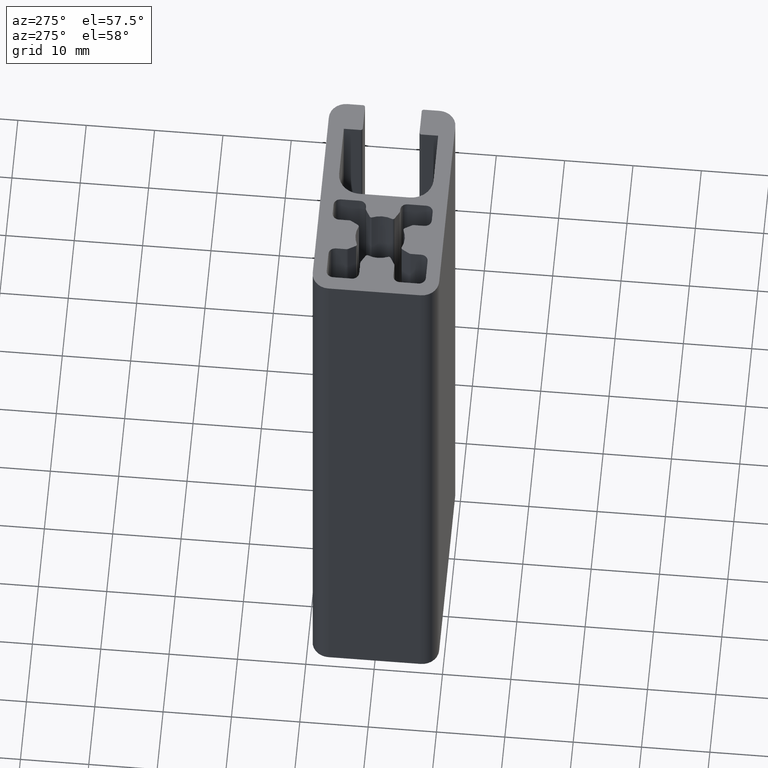
[diagram: clean part render]
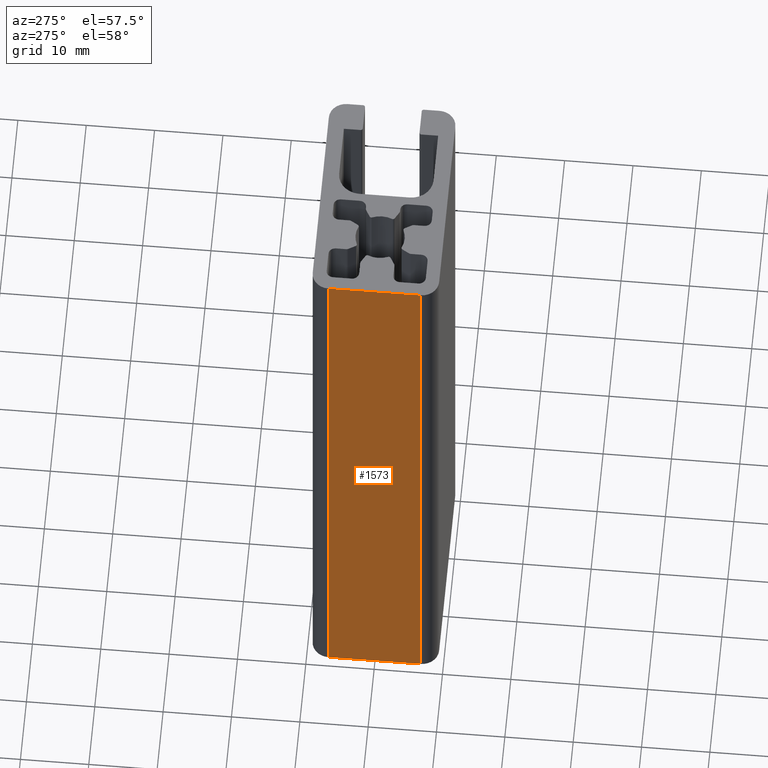
[diagram: same view with one face highlighted and labeled with its STEP entity id]
A machine part, auxiliary view. The second image highlights one B-rep face of the part: STEP entity #1573.
In plain terms, the highlighted planar face has unit normal (-1, 0, 0).
Its self-contained STEP definition (entity closure, byte-faithful):
#215=FACE_OUTER_BOUND('',#296,.T.);
#296=EDGE_LOOP('',(#1357,#1358,#1359,#1360));
#418=LINE('',#2589,#568);
#444=LINE('',#2669,#594);
#446=LINE('',#2675,#596);
#447=LINE('',#2676,#597);
#568=VECTOR('',#2096,13.5);
#594=VECTOR('',#2192,100.);
#596=VECTOR('',#2198,100.);
#597=VECTOR('',#2199,13.5);
#734=VERTEX_POINT('',#2586);
#735=VERTEX_POINT('',#2588);
#754=VERTEX_POINT('',#2668);
#756=VERTEX_POINT('',#2674);
#938=EDGE_CURVE('',#735,#734,#418,.T.);
#980=EDGE_CURVE('',#754,#735,#444,.T.);
#983=EDGE_CURVE('',#756,#734,#446,.T.);
#984=EDGE_CURVE('',#754,#756,#447,.T.);
#1357=ORIENTED_EDGE('',*,*,#938,.T.);
#1358=ORIENTED_EDGE('',*,*,#983,.F.);
#1359=ORIENTED_EDGE('',*,*,#984,.F.);
#1360=ORIENTED_EDGE('',*,*,#980,.T.);
#1496=PLANE('',#1736);
#1573=ADVANCED_FACE('',(#215),#1496,.T.);
#1736=AXIS2_PLACEMENT_3D('',#2673,#2196,#2197);
#2096=DIRECTION('',(0.,1.,0.));
#2192=DIRECTION('',(0.,0.,1.));
#2196=DIRECTION('center_axis',(-1.,0.,0.));
#2197=DIRECTION('ref_axis',(0.,-1.,0.));
#2198=DIRECTION('',(0.,0.,1.));
#2199=DIRECTION('',(0.,1.,0.));
#2586=CARTESIAN_POINT('',(-9.5,6.75,100.));
#2588=CARTESIAN_POINT('',(-9.5,-6.75,100.));
#2589=CARTESIAN_POINT('',(-9.5,3.375,100.));
#2668=CARTESIAN_POINT('',(-9.5,-6.75,0.));
#2669=CARTESIAN_POINT('',(-9.5,-6.75,0.));
#2673=CARTESIAN_POINT('Origin',(-9.5,6.75,0.));
#2674=CARTESIAN_POINT('',(-9.5,6.75,0.));
#2675=CARTESIAN_POINT('',(-9.5,6.75,0.));
#2676=CARTESIAN_POINT('',(-9.5,3.375,0.));